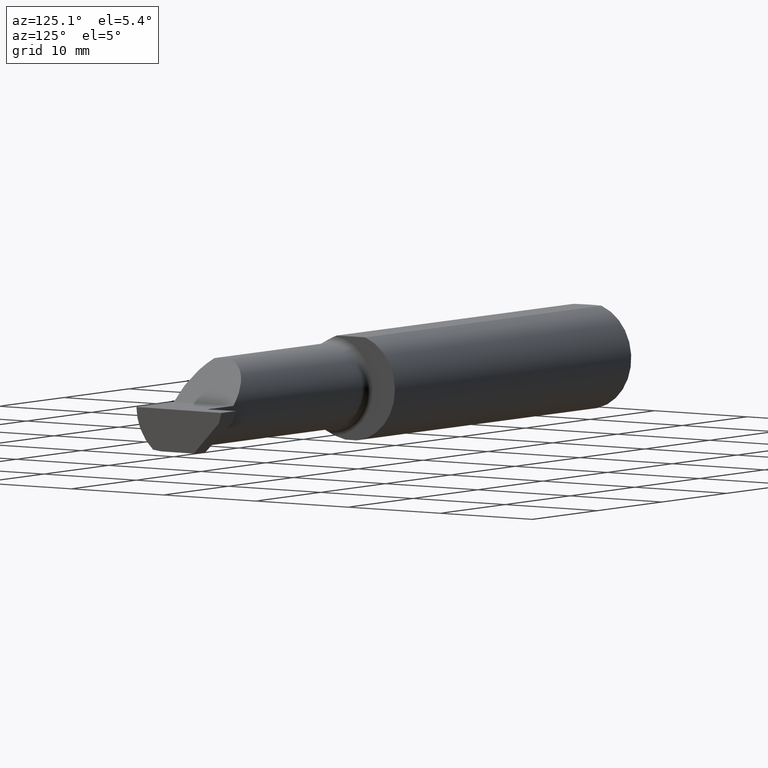
[diagram: clean part render]
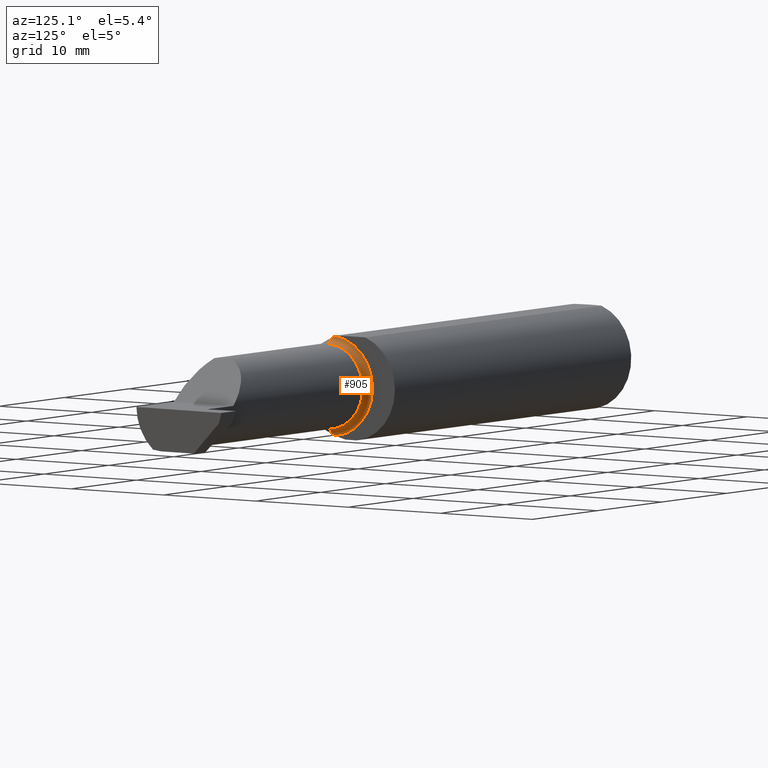
[diagram: same view with one face highlighted and labeled with its STEP entity id]
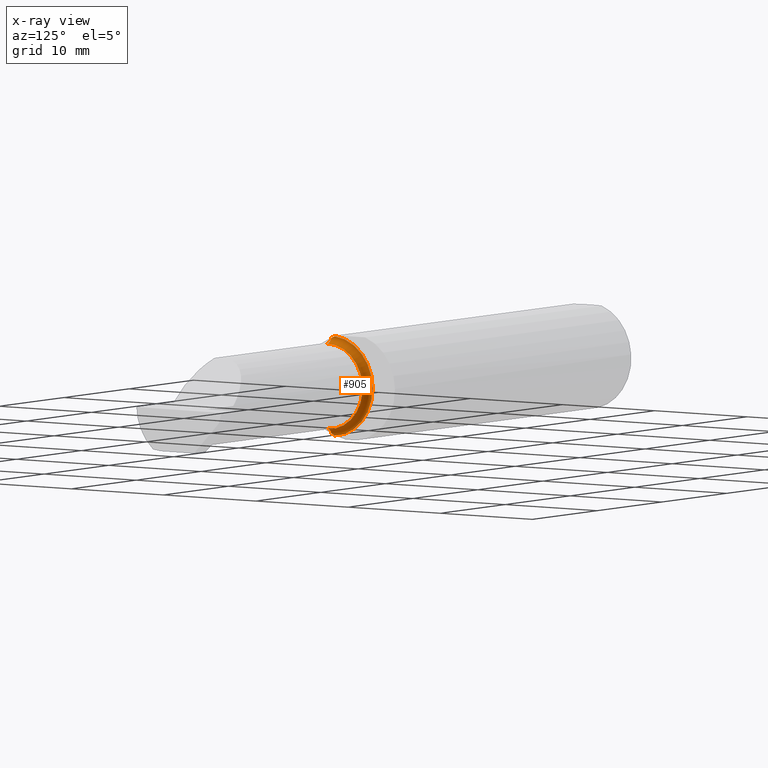
[diagram: x-ray of the same camera — body ghosted, the highlighted face saturated]
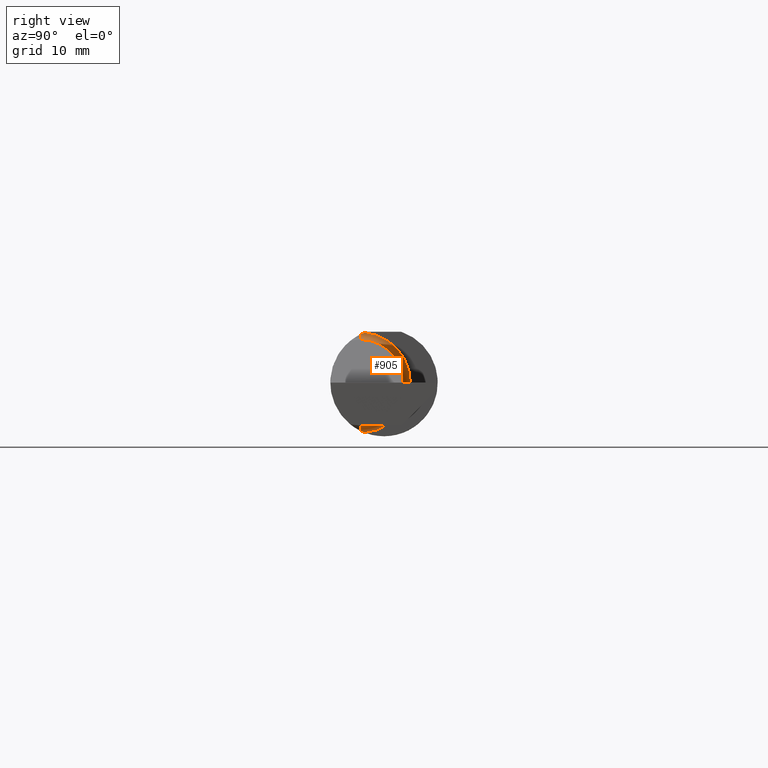
[diagram: same view with one face highlighted and labeled with its STEP entity id]
A machine part, auxiliary view. The second image highlights one B-rep face of the part: STEP entity #905.
The next image is the same camera in x-ray: the body ghosted, the highlighted face saturated — about 0% of this face is hidden behind the body in this view.
A second angle (right view) of the same face is appended — the face is thin or edge-on in the first view.
In plain terms, the highlighted toroidal blend (fillet) surface has major radius 4.445 mm and minor (blend) radius 0.635 mm.
Its self-contained STEP definition (entity closure, byte-faithful):
#4 = CIRCLE ( 'NONE', #451, 0.02499999999999993894 ) ;
#11 = CARTESIAN_POINT ( 'NONE',  ( 1.474999999999999867, -0.08334999999999995191, 0.000000000000000000 ) ) ;
#46 = EDGE_CURVE ( 'NONE', #318, #518, #651, .T. ) ;
#95 = VERTEX_POINT ( 'NONE', #563 ) ;
#97 = CARTESIAN_POINT ( 'NONE',  ( 1.474999999999999867, -0.08334999999999992415, -0.1749999999999999889 ) ) ;
#143 = CARTESIAN_POINT ( 'NONE',  ( 1.450344683557281522, -0.07855153123406181936, 0.1701716388274757685 ) ) ;
#153 = CARTESIAN_POINT ( 'NONE',  ( 1.474999999999999867, -0.08334999999999996578, 0.1499999999999999667 ) ) ;
#164 = DIRECTION ( 'NONE',  ( 0.000000000000000000, 0.000000000000000000, 1.000000000000000000 ) ) ;
#172 = CIRCLE ( 'NONE', #246, 0.02499999999999993894 ) ;
#178 = ORIENTED_EDGE ( 'NONE', *, *, #602, .T. ) ;
#190 = DIRECTION ( 'NONE',  ( -1.000000000000000000, -0.000000000000000000, -0.000000000000000000 ) ) ;
#191 = AXIS2_PLACEMENT_3D ( 'NONE', #571, #889, #164 ) ;
#210 = EDGE_CURVE ( 'NONE', #810, #95, #172, .T. ) ;
#213 = AXIS2_PLACEMENT_3D ( 'NONE', #11, #656, #259 ) ;
#228 = AXIS2_PLACEMENT_3D ( 'NONE', #243, #190, #369 ) ;
#243 = CARTESIAN_POINT ( 'NONE',  ( 1.474999999999999867, -0.08334999999999996578, 0.000000000000000000 ) ) ;
#246 = AXIS2_PLACEMENT_3D ( 'NONE', #97, #328, #324 ) ;
#248 = TOROIDAL_SURFACE ( 'NONE', #213, 0.1749999999999999889, 0.02499999999999994241 ) ;
#251 = CARTESIAN_POINT ( 'NONE',  ( 1.450000000000000178, -0.06851976604679065053, -0.1743704796142198643 ) ) ;
#259 = DIRECTION ( 'NONE',  ( 0.000000000000000000, 0.000000000000000000, 1.000000000000000000 ) ) ;
#277 = EDGE_CURVE ( 'NONE', #810, #829, #580, .T. ) ;
#278 = CARTESIAN_POINT ( 'NONE',  ( 1.450000000000000178, -0.06851976604679065053, 0.1743704796142198643 ) ) ;
#300 = CARTESIAN_POINT ( 'NONE',  ( 1.450000000000000178, -0.06851976604679065053, 0.1743704796142198643 ) ) ;
#302 = CARTESIAN_POINT ( 'NONE',  ( 1.451062863587533558, -0.08334999999998814191, 0.1677879614275171183 ) ) ;
#307 = EDGE_CURVE ( 'NONE', #518, #895, #4, .T. ) ;
#318 = VERTEX_POINT ( 'NONE', #300 ) ;
#324 = DIRECTION ( 'NONE',  ( 0.000000000000000000, 0.000000000000000000, 1.000000000000000000 ) ) ;
#328 = DIRECTION ( 'NONE',  ( -0.000000000000000000, 1.000000000000000000, 1.224646799147353207E-16 ) ) ;
#364 = ORIENTED_EDGE ( 'NONE', *, *, #210, .F. ) ;
#369 = DIRECTION ( 'NONE',  ( 0.000000000000000000, 0.000000000000000000, 1.000000000000000000 ) ) ;
#393 = CARTESIAN_POINT ( 'NONE',  ( 1.451062863587535556, -0.08334999999999985476, -0.1677879614275112619 ) ) ;
#448 = DIRECTION ( 'NONE',  ( 0.000000000000000000, 0.000000000000000000, -1.000000000000000000 ) ) ;
#451 = AXIS2_PLACEMENT_3D ( 'NONE', #684, #837, #448 ) ;
#504 = ORIENTED_EDGE ( 'NONE', *, *, #307, .T. ) ;
#518 = VERTEX_POINT ( 'NONE', #890 ) ;
#563 = CARTESIAN_POINT ( 'NONE',  ( 1.474999999999999867, -0.08334999999999995191, -0.1499999999999999667 ) ) ;
#565 = FACE_OUTER_BOUND ( 'NONE', #753, .T. ) ;
#571 = CARTESIAN_POINT ( 'NONE',  ( 1.450000000000000178, -0.08334999999999996578, 0.000000000000000000 ) ) ;
#580 = B_SPLINE_CURVE_WITH_KNOTS ( 'NONE', 3,
 ( #585, #649, #962, #251 ),
 .UNSPECIFIED., .F., .F.,
 ( 4, 4 ),
 ( 0.001278539404338875510, 0.001694873732696221573 ),
 .UNSPECIFIED. ) ;
#585 = CARTESIAN_POINT ( 'NONE',  ( 1.451062863587535556, -0.08334999999999985476, -0.1677879614275112619 ) ) ;
#597 = ORIENTED_EDGE ( 'NONE', *, *, #46, .T. ) ;
#600 = CARTESIAN_POINT ( 'NONE',  ( 1.449999999999999512, -0.07360907839729495528, 0.1723706084642000758 ) ) ;
#602 = EDGE_CURVE ( 'NONE', #895, #95, #997, .T. ) ;
#649 = CARTESIAN_POINT ( 'NONE',  ( 1.450346246588685162, -0.07856197451716395719, -0.1701664510438046507 ) ) ;
#651 = B_SPLINE_CURVE_WITH_KNOTS ( 'NONE', 3,
 ( #278, #600, #143, #302 ),
 .UNSPECIFIED., .F., .F.,
 ( 4, 4 ),
 ( 4.423516731080786679E-05, 0.0004561457252213468741 ),
 .UNSPECIFIED. ) ;
#656 = DIRECTION ( 'NONE',  ( -1.000000000000000000, -0.000000000000000000, -0.000000000000000000 ) ) ;
#684 = CARTESIAN_POINT ( 'NONE',  ( 1.474999999999999867, -0.08334999999999995191, 0.1749999999999999889 ) ) ;
#691 = ORIENTED_EDGE ( 'NONE', *, *, #277, .T. ) ;
#741 = ORIENTED_EDGE ( 'NONE', *, *, #939, .F. ) ;
#753 = EDGE_LOOP ( 'NONE', ( #364, #691, #741, #597, #504, #178 ) ) ;
#797 = CARTESIAN_POINT ( 'NONE',  ( 1.450000000000000178, -0.06851976604679065053, -0.1743704796142198643 ) ) ;
#810 = VERTEX_POINT ( 'NONE', #393 ) ;
#829 = VERTEX_POINT ( 'NONE', #797 ) ;
#837 = DIRECTION ( 'NONE',  ( 0.000000000000000000, -1.000000000000000000, 0.000000000000000000 ) ) ;
#889 = DIRECTION ( 'NONE',  ( -1.000000000000000000, -0.000000000000000000, -0.000000000000000000 ) ) ;
#890 = CARTESIAN_POINT ( 'NONE',  ( 1.451062863587533558, -0.08334999999998814191, 0.1677879614275171183 ) ) ;
#895 = VERTEX_POINT ( 'NONE', #153 ) ;
#905 = ADVANCED_FACE ( 'NONE', ( #565 ), #248, .F. ) ;
#939 = EDGE_CURVE ( 'NONE', #318, #829, #998, .T. ) ;
#962 = CARTESIAN_POINT ( 'NONE',  ( 1.450000000000000178, -0.07359296612170562746, -0.1723769398647691520 ) ) ;
#997 = CIRCLE ( 'NONE', #228, 0.1499999999999999667 ) ;
#998 = CIRCLE ( 'NONE', #191, 0.1749999999999999889 ) ;